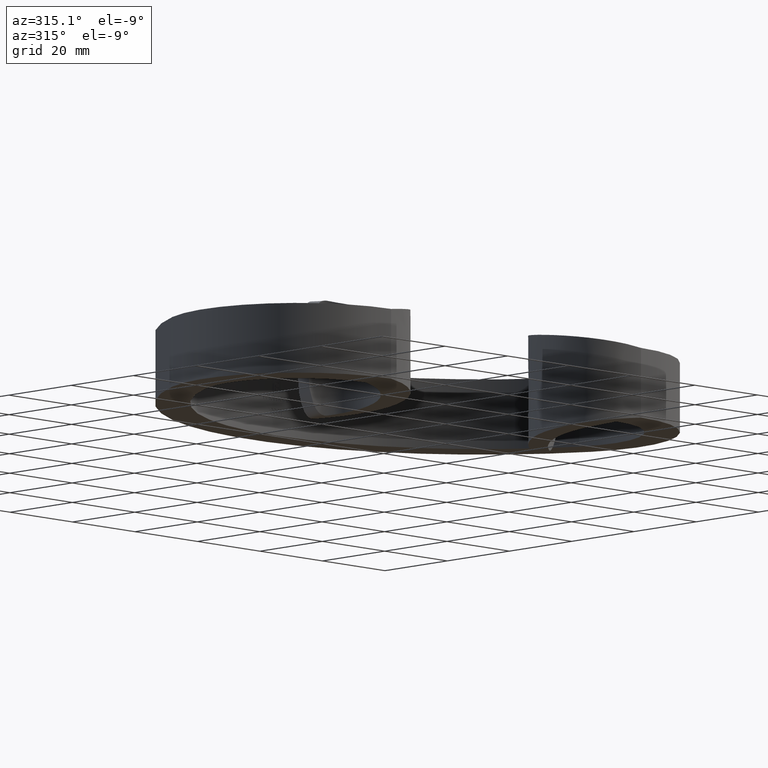
[diagram: clean part render]
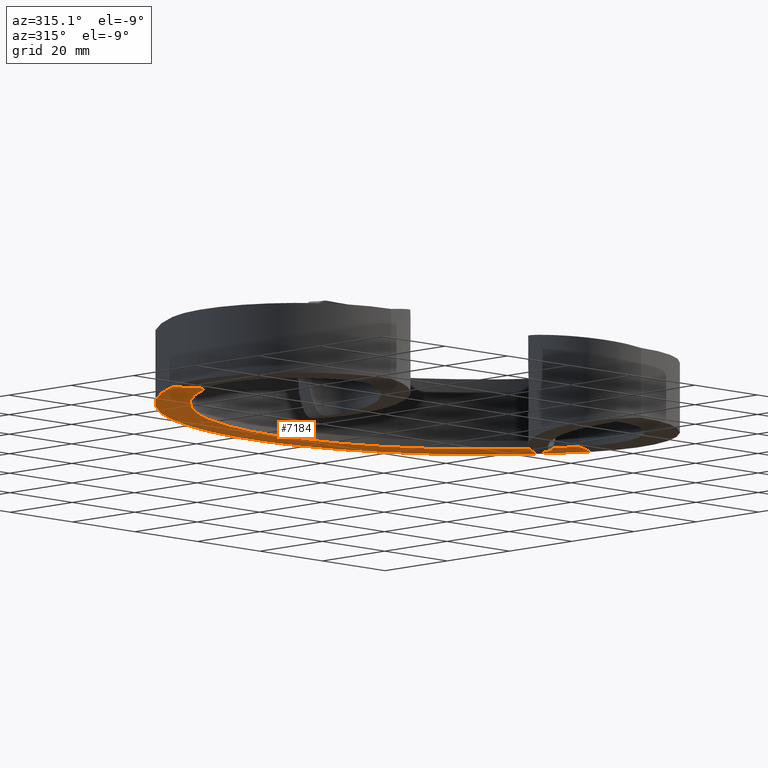
[diagram: same view with one face highlighted and labeled with its STEP entity id]
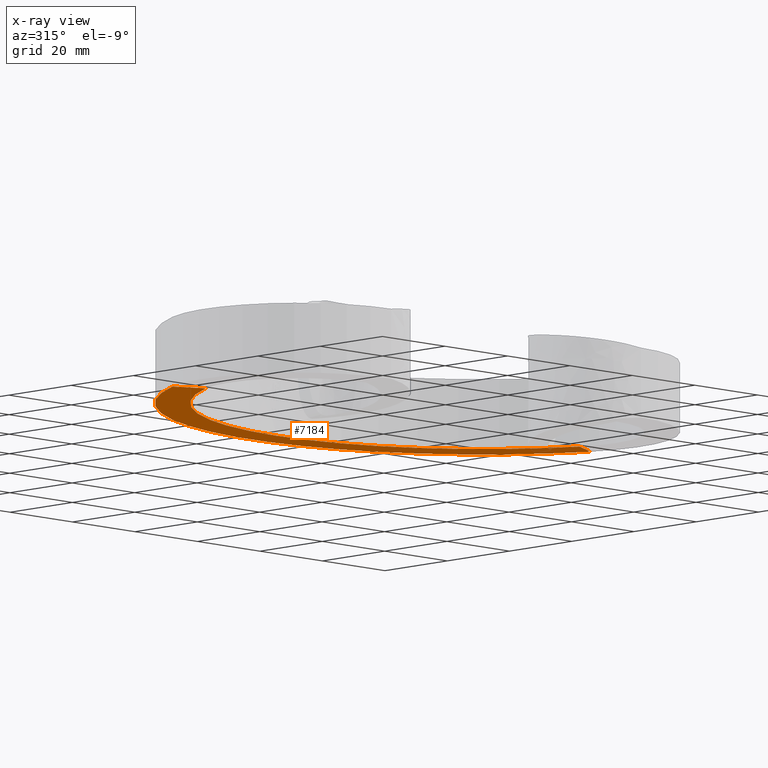
[diagram: x-ray of the same camera — body ghosted, the highlighted face saturated]
A machine part, auxiliary view. The second image highlights one B-rep face of the part: STEP entity #7184.
The next image is the same camera in x-ray: the body ghosted, the highlighted face saturated — about 2% of this face is hidden behind the body in this view.
In plain terms, the highlighted planar face has unit normal (-0, 0, -1).
Its self-contained STEP definition (entity closure, byte-faithful):
#624 = EDGE_CURVE ( 'NONE', #1022, #9851, #3299, .T. ) ;
#648 = CARTESIAN_POINT ( 'NONE',  ( -59.77528089887640306, -2.859550561797725265, -8.000000000000001776 ) ) ;
#1022 = VERTEX_POINT ( 'NONE', #7930 ) ;
#1451 = VECTOR ( 'NONE', #4884, 1000.000000000000000 ) ;
#1543 = DIRECTION ( 'NONE',  ( 0.8988764044943815534, 0.4382022471910120287, 0.000000000000000000 ) ) ;
#1720 = AXIS2_PLACEMENT_3D ( 'NONE', #10760, #9751, #6073 ) ;
#2348 = CARTESIAN_POINT ( 'NONE',  ( 0.000000000000000000, -32.00000000000002842, -8.000000000000001776 ) ) ;
#2903 = CARTESIAN_POINT ( 'NONE',  ( 59.77528089887638885, -2.859550561797718160, -8.000000000000001776 ) ) ;
#2967 = FACE_OUTER_BOUND ( 'NONE', #9591, .T. ) ;
#3055 = CARTESIAN_POINT ( 'NONE',  ( 59.77528089887641016, -2.859550561797704393, -8.000000000000001776 ) ) ;
#3299 = LINE ( 'NONE', #3055, #10111 ) ;
#3303 = DIRECTION ( 'NONE',  ( 0.000000000000000000, 0.000000000000000000, 1.000000000000000000 ) ) ;
#3529 = CARTESIAN_POINT ( 'NONE',  ( 0.000000000000000000, -32.00000000000002842, -8.000000000000000000 ) ) ;
#3572 = ORIENTED_EDGE ( 'NONE', *, *, #5699, .T. ) ;
#3969 = CIRCLE ( 'NONE', #11724, 66.50000000000002842 ) ;
#4605 = CARTESIAN_POINT ( 'NONE',  ( -66.96629213483147680, 0.6460674157303738507, -8.000000000000000000 ) ) ;
#4859 = CIRCLE ( 'NONE', #9255, 74.50000000000004263 ) ;
#4878 = DIRECTION ( 'NONE',  ( -0.8988764044943815534, -0.4382022471910124728, -2.168404344971009115E-16 ) ) ;
#4884 = DIRECTION ( 'NONE',  ( 0.8988764044943816645, -0.4382022471910119177, -2.168404344971008868E-16 ) ) ;
#4893 = ORIENTED_EDGE ( 'NONE', *, *, #5319, .F. ) ;
#5319 = EDGE_CURVE ( 'NONE', #1022, #9540, #4859, .T. ) ;
#5699 = EDGE_CURVE ( 'NONE', #9851, #9341, #3969, .T. ) ;
#6073 = DIRECTION ( 'NONE',  ( -1.000000000000000000, 0.000000000000000000, 0.000000000000000000 ) ) ;
#7184 = ADVANCED_FACE ( 'NONE', ( #2967 ), #8731, .T. ) ;
#7241 = DIRECTION ( 'NONE',  ( 0.000000000000000000, 0.000000000000000000, 1.000000000000000000 ) ) ;
#7930 = CARTESIAN_POINT ( 'NONE',  ( 66.96629213483143417, 0.6460674157303912812, -8.000000000000000000 ) ) ;
#8353 = EDGE_CURVE ( 'NONE', #9540, #9341, #11637, .T. ) ;
#8652 = CARTESIAN_POINT ( 'NONE',  ( -59.77528089887641727, -2.859550561797707946, -8.000000000000001776 ) ) ;
#8731 = PLANE ( 'NONE',  #1720 ) ;
#9255 = AXIS2_PLACEMENT_3D ( 'NONE', #3529, #7241, #1543 ) ;
#9341 = VERTEX_POINT ( 'NONE', #648 ) ;
#9448 = ORIENTED_EDGE ( 'NONE', *, *, #8353, .F. ) ;
#9540 = VERTEX_POINT ( 'NONE', #4605 ) ;
#9591 = EDGE_LOOP ( 'NONE', ( #3572, #9448, #4893, #10054 ) ) ;
#9751 = DIRECTION ( 'NONE',  ( -0.000000000000000000, 0.000000000000000000, -1.000000000000000000 ) ) ;
#9851 = VERTEX_POINT ( 'NONE', #2903 ) ;
#10054 = ORIENTED_EDGE ( 'NONE', *, *, #624, .T. ) ;
#10111 = VECTOR ( 'NONE', #4878, 999.9999999999998863 ) ;
#10760 = CARTESIAN_POINT ( 'NONE',  ( 59.77528089887640306, -2.859550561797711499, -8.000000000000000000 ) ) ;
#11637 = LINE ( 'NONE', #8652, #1451 ) ;
#11724 = AXIS2_PLACEMENT_3D ( 'NONE', #2348, #3303, #11742 ) ;
#11742 = DIRECTION ( 'NONE',  ( 0.8988764044943816645, 0.4382022471910120842, 0.000000000000000000 ) ) ;